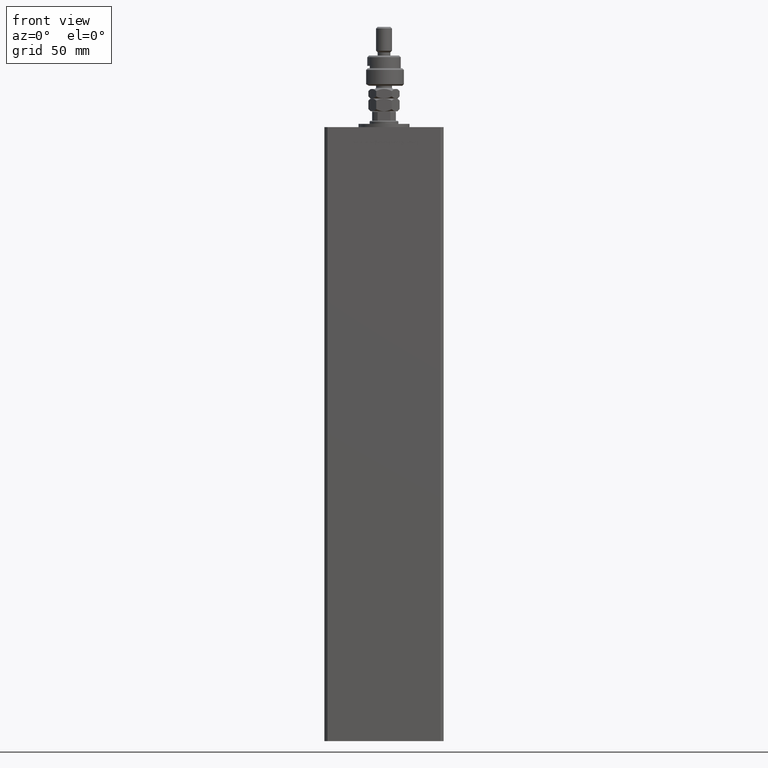
[diagram: clean part render]
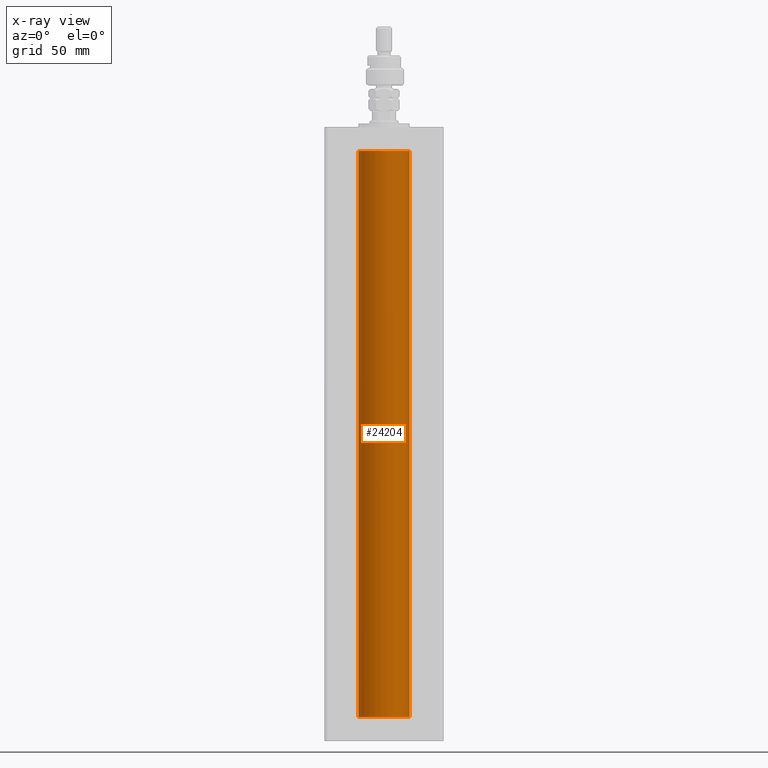
[diagram: x-ray — body ghosted, one internal face saturated and labeled with its STEP entity id]
A machine part, front view, then the same camera in x-ray: the body is ghosted and one INTERNAL B-rep face — a face not visible from any outside direction — is saturated and labeled: STEP entity #24204.
In plain terms, the highlighted cylindrical surface (edge-blend (fillet) strip) has radius 16 mm, axis along (-0, -0, -1).
Its self-contained STEP definition (entity closure, byte-faithful):
#1471 = CARTESIAN_POINT ( 'NONE',  ( -16.00000000000000000, 0.000000000000000000, 356.0000000000000000 ) ) ;
#2844 = CARTESIAN_POINT ( 'NONE',  ( 0.000000000000000000, 0.000000000000000000, 356.0000000000000000 ) ) ;
#3211 = EDGE_CURVE ( 'NONE', #19235, #18680, #10307, .T. ) ;
#5155 = ORIENTED_EDGE ( 'NONE', *, *, #31043, .T. ) ;
#6235 = LINE ( 'NONE', #10382, #39784 ) ;
#7434 = VECTOR ( 'NONE', #35432, 1000.000000000000000 ) ;
#8884 = EDGE_LOOP ( 'NONE', ( #39377, #5155, #38555, #24746 ) ) ;
#10307 = LINE ( 'NONE', #1471, #7434 ) ;
#10382 = CARTESIAN_POINT ( 'NONE',  ( 16.00000000000000000, 1.959434878635765131E-15, 356.0000000000000000 ) ) ;
#11997 = VERTEX_POINT ( 'NONE', #31821 ) ;
#16642 = DIRECTION ( 'NONE',  ( -0.000000000000000000, 0.000000000000000000, 1.000000000000000000 ) ) ;
#16913 = CARTESIAN_POINT ( 'NONE',  ( 0.000000000000000000, 0.000000000000000000, 356.0000000000000000 ) ) ;
#18625 = CARTESIAN_POINT ( 'NONE',  ( 16.00000000000000000, 1.959434878635765131E-15, 356.0000000000000000 ) ) ;
#18680 = VERTEX_POINT ( 'NONE', #50682 ) ;
#19198 = DIRECTION ( 'NONE',  ( -0.000000000000000000, -0.000000000000000000, -1.000000000000000000 ) ) ;
#19235 = VERTEX_POINT ( 'NONE', #44850 ) ;
#24204 = ADVANCED_FACE ( 'NONE', ( #44811 ), #40675, .F. ) ;
#24746 = ORIENTED_EDGE ( 'NONE', *, *, #3211, .F. ) ;
#25129 = CIRCLE ( 'NONE', #29666, 16.00000000000000000 ) ;
#29005 = AXIS2_PLACEMENT_3D ( 'NONE', #2844, #36528, #45363 ) ;
#29666 = AXIS2_PLACEMENT_3D ( 'NONE', #16913, #16642, #37632 ) ;
#30324 = EDGE_CURVE ( 'NONE', #18680, #11997, #49487, .T. ) ;
#31043 = EDGE_CURVE ( 'NONE', #44172, #11997, #6235, .T. ) ;
#31821 = CARTESIAN_POINT ( 'NONE',  ( 16.00000000000000000, 1.959434878635765131E-15, 0.000000000000000000 ) ) ;
#35432 = DIRECTION ( 'NONE',  ( -0.000000000000000000, -0.000000000000000000, -1.000000000000000000 ) ) ;
#36307 = CARTESIAN_POINT ( 'NONE',  ( 0.000000000000000000, 0.000000000000000000, 0.000000000000000000 ) ) ;
#36528 = DIRECTION ( 'NONE',  ( -0.000000000000000000, -0.000000000000000000, -1.000000000000000000 ) ) ;
#37632 = DIRECTION ( 'NONE',  ( 1.000000000000000000, 0.000000000000000000, 0.000000000000000000 ) ) ;
#38555 = ORIENTED_EDGE ( 'NONE', *, *, #30324, .F. ) ;
#39377 = ORIENTED_EDGE ( 'NONE', *, *, #41105, .T. ) ;
#39784 = VECTOR ( 'NONE', #19198, 1000.000000000000000 ) ;
#40649 = AXIS2_PLACEMENT_3D ( 'NONE', #36307, #46152, #44589 ) ;
#40675 = CYLINDRICAL_SURFACE ( 'NONE', #29005, 16.00000000000000000 ) ;
#41105 = EDGE_CURVE ( 'NONE', #19235, #44172, #25129, .T. ) ;
#44172 = VERTEX_POINT ( 'NONE', #18625 ) ;
#44589 = DIRECTION ( 'NONE',  ( 1.000000000000000000, 0.000000000000000000, 0.000000000000000000 ) ) ;
#44811 = FACE_OUTER_BOUND ( 'NONE', #8884, .T. ) ;
#44850 = CARTESIAN_POINT ( 'NONE',  ( -16.00000000000000000, 0.000000000000000000, 356.0000000000000000 ) ) ;
#45363 = DIRECTION ( 'NONE',  ( -1.000000000000000000, 0.000000000000000000, 0.000000000000000000 ) ) ;
#46152 = DIRECTION ( 'NONE',  ( -0.000000000000000000, 0.000000000000000000, 1.000000000000000000 ) ) ;
#49487 = CIRCLE ( 'NONE', #40649, 16.00000000000000000 ) ;
#50682 = CARTESIAN_POINT ( 'NONE',  ( -16.00000000000000000, 0.000000000000000000, 0.000000000000000000 ) ) ;